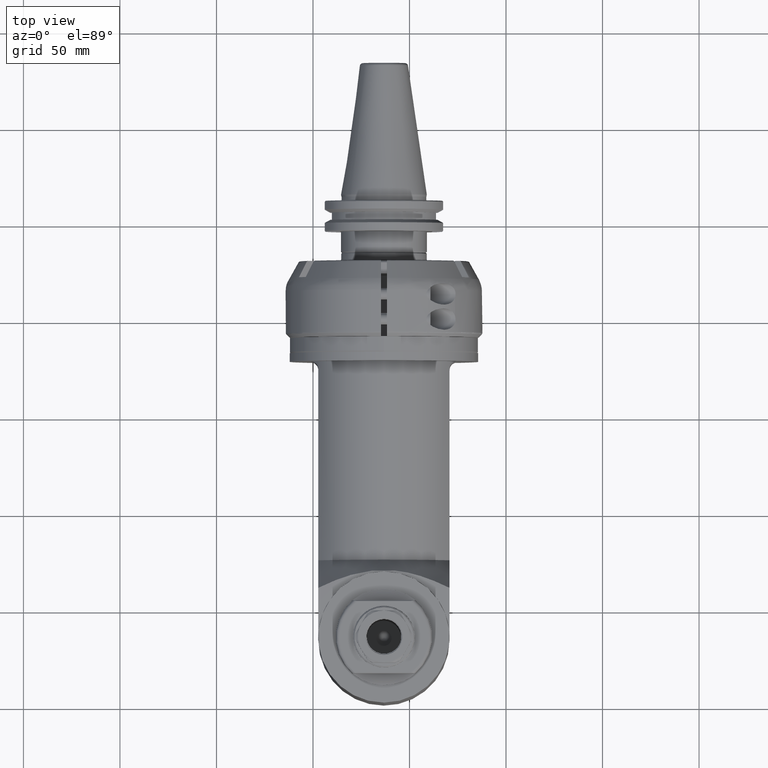
[diagram: clean part render]
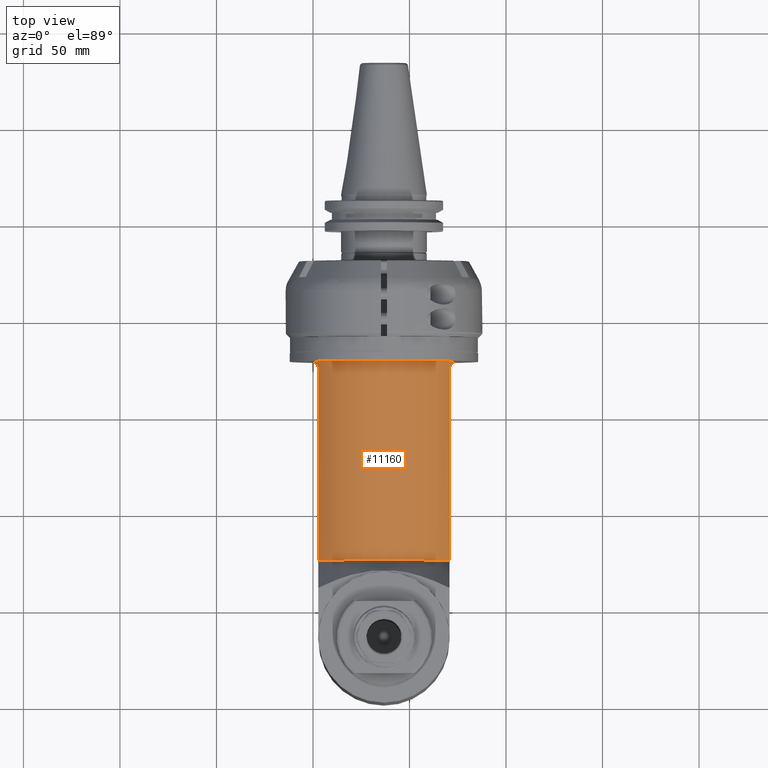
[diagram: same view with one face highlighted and labeled with its STEP entity id]
A machine part, top view. The second image highlights one B-rep face of the part: STEP entity #11160.
In plain terms, the highlighted cylindrical surface (partial cylindrical patch) has radius 40.5 mm, axis along (-0, 1, -0).
Its self-contained STEP definition (entity closure, byte-faithful):
#631=B_SPLINE_CURVE_WITH_KNOTS('',3,(#50118,#50119,#50120,#50121,#50122,
#50123,#50124,#50125,#50126,#50127,#50128,#50129),.UNSPECIFIED.,.F.,.F.,
(4,2,2,2,2,4),(2.39655218512697,2.49728773824666,2.59802329136635,2.79679936121655,
2.99557543106675,3.42850453892846),.UNSPECIFIED.);
#634=B_SPLINE_CURVE_WITH_KNOTS('',3,(#50193,#50194,#50195,#50196,#50197,
#50198,#50199,#50200,#50201,#50202,#50203,#50204),.UNSPECIFIED.,.F.,.F.,
(4,2,2,2,2,4),(6.15770420157944,6.59063330944115,6.78940937929135,6.98818544914155,
7.08892100226124,7.18965655538093),.UNSPECIFIED.);
#1088=CYLINDRICAL_SURFACE('',#12910,40.5);
#1694=FACE_OUTER_BOUND('',#2469,.T.);
#2469=EDGE_LOOP('',(#10061,#10062,#10063,#10064,#10065,#10066));
#3145=CIRCLE('',#12893,40.5);
#3154=CIRCLE('',#12911,40.5);
#3826=LINE('',#50052,#4529);
#3854=LINE('',#50207,#4557);
#4529=VECTOR('',#16057,99.20009963118);
#4557=VECTOR('',#16161,99.20009963118);
#5531=VERTEX_POINT('',#50048);
#5533=VERTEX_POINT('',#50051);
#5553=VERTEX_POINT('',#50115);
#5557=VERTEX_POINT('',#50146);
#5567=VERTEX_POINT('',#50191);
#5568=VERTEX_POINT('',#50206);
#7036=EDGE_CURVE('',#5533,#5531,#3826,.T.);
#7067=EDGE_CURVE('',#5531,#5553,#631,.T.);
#7071=EDGE_CURVE('',#5557,#5553,#3145,.T.);
#7087=EDGE_CURVE('',#5557,#5567,#634,.T.);
#7088=EDGE_CURVE('',#5567,#5568,#3854,.T.);
#7089=EDGE_CURVE('',#5568,#5533,#3154,.T.);
#10061=ORIENTED_EDGE('',*,*,#7071,.F.);
#10062=ORIENTED_EDGE('',*,*,#7087,.T.);
#10063=ORIENTED_EDGE('',*,*,#7088,.T.);
#10064=ORIENTED_EDGE('',*,*,#7089,.T.);
#10065=ORIENTED_EDGE('',*,*,#7036,.T.);
#10066=ORIENTED_EDGE('',*,*,#7067,.T.);
#11160=ADVANCED_FACE('',(#1694),#1088,.T.);
#12893=AXIS2_PLACEMENT_3D('',#50148,#16119,#16120);
#12910=AXIS2_PLACEMENT_3D('',#50205,#16159,#16160);
#12911=AXIS2_PLACEMENT_3D('',#50208,#16162,#16163);
#16057=DIRECTION('',(0.,1.,0.));
#16119=DIRECTION('center_axis',(0.,1.,0.));
#16120=DIRECTION('ref_axis',(0.345899400644989,0.,0.93827160493827));
#16159=DIRECTION('center_axis',(0.,1.,0.));
#16160=DIRECTION('ref_axis',(1.,0.,0.));
#16161=DIRECTION('',(1.489846175433E-14,-1.,0.));
#16162=DIRECTION('center_axis',(0.,1.,0.));
#16163=DIRECTION('ref_axis',(0.543350150238688,0.,0.839506172839482));
#50048=CARTESIAN_POINT('',(11.16572287258,36.5,-34.));
#50051=CARTESIAN_POINT('',(11.16572287258,-62.70009963118,-34.));
#50052=CARTESIAN_POINT('',(11.16572287258,-62.70009963118,-34.));
#50115=CARTESIAN_POINT('',(3.16896751404,40.5,-38.));
#50118=CARTESIAN_POINT('Ctrl Pts',(11.1657228725854,36.5,-34.));
#50119=CARTESIAN_POINT('Ctrl Pts',(11.1657228725854,36.8357851770656,-34.));
#50120=CARTESIAN_POINT('Ctrl Pts',(11.0957904372558,37.1868982101019,-34.0455131023825));
#50121=CARTESIAN_POINT('Ctrl Pts',(10.8345143809157,37.8282345170094,-34.2124432338204));
#50122=CARTESIAN_POINT('Ctrl Pts',(10.6444432615892,38.1193053239075,-34.3325898670067));
#50123=CARTESIAN_POINT('Ctrl Pts',(10.0445774806404,38.8261506689508,-34.7030996594612));
#50124=CARTESIAN_POINT('Ctrl Pts',(9.5230853972272,39.1964402785048,-35.0146112933639));
#50125=CARTESIAN_POINT('Ctrl Pts',(8.38349055921099,39.7672418937452,-35.6529882201391));
#50126=CARTESIAN_POINT('Ctrl Pts',(7.7648693116031,39.9670235120058,-35.9795806572582));
#50127=CARTESIAN_POINT('Ctrl Pts',(5.92089103230959,40.4072611397008,-36.8960083585164));
#50128=CARTESIAN_POINT('Ctrl Pts',(4.57371207123354,40.5000000000001,-37.4821325745824));
#50129=CARTESIAN_POINT('Ctrl Pts',(3.16896751404022,40.5,-38.0000000000006));
#50146=CARTESIAN_POINT('',(3.16896751404,40.5,38.));
#50148=CARTESIAN_POINT('Origin',(-10.83995821208,40.5,0.));
#50191=CARTESIAN_POINT('',(11.16572287258,36.5,34.));
#50193=CARTESIAN_POINT('Ctrl Pts',(3.16896751404023,40.5,38.0000000000006));
#50194=CARTESIAN_POINT('Ctrl Pts',(4.57371207123354,40.5000000000001,37.4821325745824));
#50195=CARTESIAN_POINT('Ctrl Pts',(5.92089103230959,40.4072611397008,36.8960083585164));
#50196=CARTESIAN_POINT('Ctrl Pts',(7.7648693116031,39.9670235120058,35.9795806572582));
#50197=CARTESIAN_POINT('Ctrl Pts',(8.38349055921099,39.7672418937452,35.6529882201391));
#50198=CARTESIAN_POINT('Ctrl Pts',(9.5230853972272,39.1964402785048,35.0146112933639));
#50199=CARTESIAN_POINT('Ctrl Pts',(10.0445774806404,38.8261506689508,34.7030996594612));
#50200=CARTESIAN_POINT('Ctrl Pts',(10.6444432615892,38.1193053239075,34.3325898670067));
#50201=CARTESIAN_POINT('Ctrl Pts',(10.8345143809157,37.8282345170094,34.2124432338204));
#50202=CARTESIAN_POINT('Ctrl Pts',(11.0957904372558,37.1868982101019,34.0455131023825));
#50203=CARTESIAN_POINT('Ctrl Pts',(11.1657228725854,36.8357851770656,34.));
#50204=CARTESIAN_POINT('Ctrl Pts',(11.1657228725854,36.5,34.));
#50205=CARTESIAN_POINT('Origin',(-10.83995821208,-55.39789926484,0.));
#50206=CARTESIAN_POINT('',(11.16572287258,-62.70009963118,34.));
#50207=CARTESIAN_POINT('',(11.16572287258,36.5,34.));
#50208=CARTESIAN_POINT('Origin',(-10.83995821208,-62.70009963118,0.));